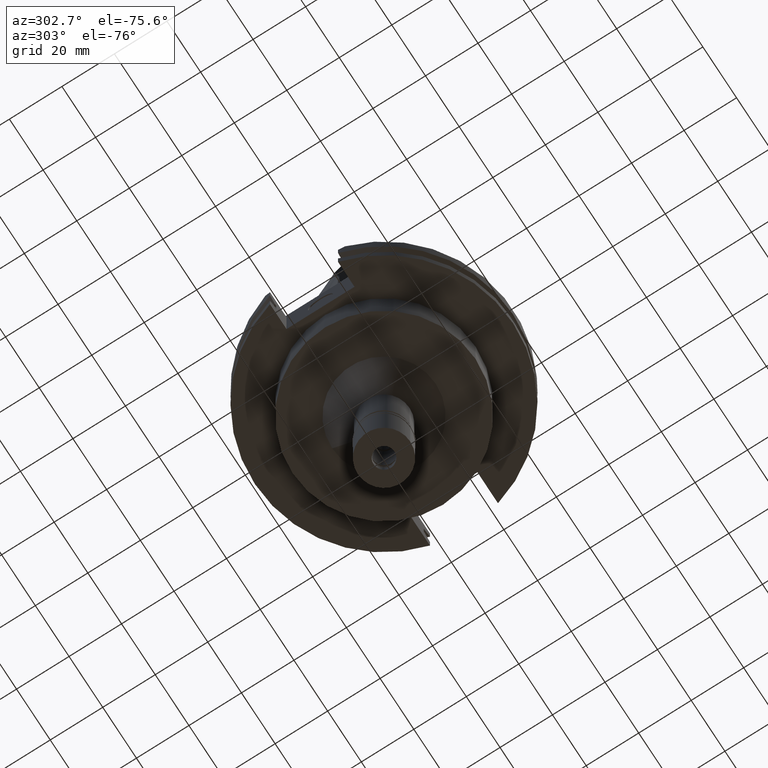
[diagram: clean part render]
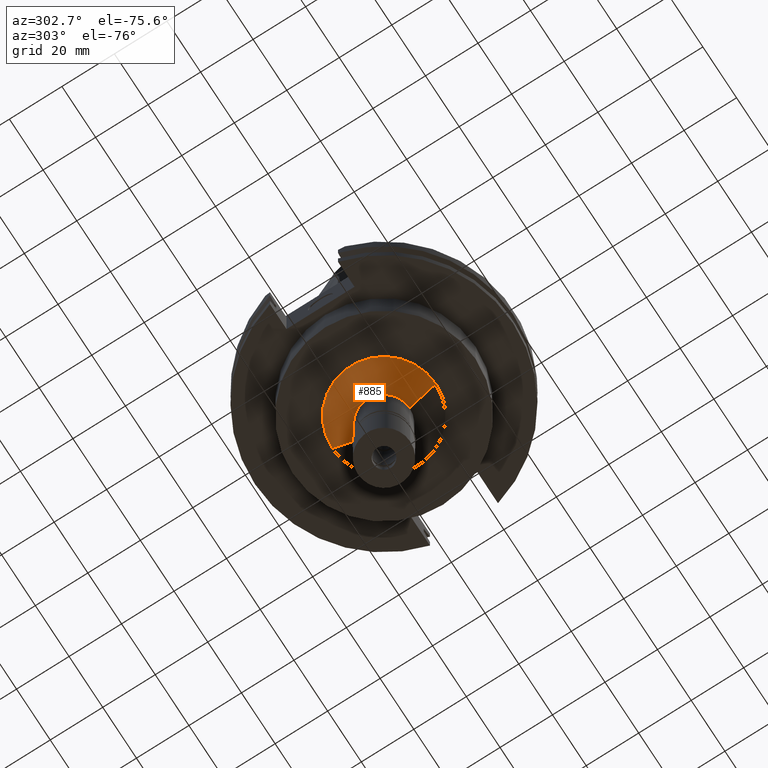
[diagram: same view with one face highlighted and labeled with its STEP entity id]
A machine part, auxiliary view. The second image highlights one B-rep face of the part: STEP entity #885.
In plain terms, the highlighted conical surface has half-angle 45 deg.
Its self-contained STEP definition (entity closure, byte-faithful):
#84 = LINE ( 'NONE', #2093, #3108 ) ;
#334 = FACE_OUTER_BOUND ( 'NONE', #1866, .T. ) ;
#359 = VERTEX_POINT ( 'NONE', #2424 ) ;
#457 = AXIS2_PLACEMENT_3D ( 'NONE', #3216, #2220, #960 ) ;
#466 = DIRECTION ( 'NONE',  ( 0.0000000000000000000, 0.7071067811865474617, -0.7071067811865474617 ) ) ;
#521 = AXIS2_PLACEMENT_3D ( 'NONE', #692, #3251, #956 ) ;
#692 = CARTESIAN_POINT ( 'NONE',  ( 0.0000000000000000000, 0.0000000000000000000, -40.00000000000000000 ) ) ;
#696 = DIRECTION ( 'NONE',  ( 0.0000000000000000000, 0.0000000000000000000, -1.000000000000000000 ) ) ;
#714 = LINE ( 'NONE', #1736, #813 ) ;
#796 = CARTESIAN_POINT ( 'NONE',  ( 0.0000000000000000000, 19.75000000000000000, -35.00000000000000000 ) ) ;
#813 = VECTOR ( 'NONE', #466, 1000.000000000000114 ) ;
#885 = ADVANCED_FACE ( 'NONE', ( #334 ), #1088, .T. ) ;
#956 = DIRECTION ( 'NONE',  ( 0.0000000000000000000, 1.000000000000000000, 0.0000000000000000000 ) ) ;
#960 = DIRECTION ( 'NONE',  ( 0.0000000000000000000, -1.000000000000000000, 0.0000000000000000000 ) ) ;
#1088 = CONICAL_SURFACE ( 'NONE', #521, 14.75000000000000000, 0.7853981633972997312 ) ;
#1097 = DIRECTION ( 'NONE',  ( 0.0000000000000000000, -0.7071067811865474617, -0.7071067811865474617 ) ) ;
#1313 = ORIENTED_EDGE ( 'NONE', *, *, #1799, .T. ) ;
#1486 = EDGE_CURVE ( 'NONE', #2607, #359, #1894, .T. ) ;
#1736 = CARTESIAN_POINT ( 'NONE',  ( 0.0000000000000000000, -19.75000000000000000, -35.00000000000000000 ) ) ;
#1799 = EDGE_CURVE ( 'NONE', #2176, #359, #84, .T. ) ;
#1807 = ORIENTED_EDGE ( 'NONE', *, *, #3017, .T. ) ;
#1866 = EDGE_LOOP ( 'NONE', ( #3093, #2904, #1807, #1313 ) ) ;
#1878 = VERTEX_POINT ( 'NONE', #2666 ) ;
#1894 = CIRCLE ( 'NONE', #457, 9.750000000000000000 ) ;
#2064 = EDGE_CURVE ( 'NONE', #1878, #2607, #714, .T. ) ;
#2093 = CARTESIAN_POINT ( 'NONE',  ( 0.0000000000000000000, 19.75000000000000000, -35.00000000000000000 ) ) ;
#2176 = VERTEX_POINT ( 'NONE', #796 ) ;
#2191 = CARTESIAN_POINT ( 'NONE',  ( 0.0000000000000000000, -9.750000000000000000, -45.00000000000000000 ) ) ;
#2197 = CIRCLE ( 'NONE', #2947, 19.75000000000000000 ) ;
#2220 = DIRECTION ( 'NONE',  ( 0.0000000000000000000, 0.0000000000000000000, -1.000000000000000000 ) ) ;
#2424 = CARTESIAN_POINT ( 'NONE',  ( 0.0000000000000000000, 9.750000000000000000, -45.00000000000000000 ) ) ;
#2454 = DIRECTION ( 'NONE',  ( 0.0000000000000000000, -1.000000000000000000, 0.0000000000000000000 ) ) ;
#2607 = VERTEX_POINT ( 'NONE', #2191 ) ;
#2666 = CARTESIAN_POINT ( 'NONE',  ( 0.0000000000000000000, -19.75000000000000000, -35.00000000000000000 ) ) ;
#2904 = ORIENTED_EDGE ( 'NONE', *, *, #2064, .F. ) ;
#2947 = AXIS2_PLACEMENT_3D ( 'NONE', #3200, #696, #2454 ) ;
#3017 = EDGE_CURVE ( 'NONE', #1878, #2176, #2197, .T. ) ;
#3093 = ORIENTED_EDGE ( 'NONE', *, *, #1486, .F. ) ;
#3108 = VECTOR ( 'NONE', #1097, 1000.000000000000114 ) ;
#3200 = CARTESIAN_POINT ( 'NONE',  ( 0.0000000000000000000, 0.0000000000000000000, -35.00000000000000000 ) ) ;
#3216 = CARTESIAN_POINT ( 'NONE',  ( 0.0000000000000000000, 0.0000000000000000000, -45.00000000000000000 ) ) ;
#3251 = DIRECTION ( 'NONE',  ( 0.0000000000000000000, 0.0000000000000000000, 1.000000000000000000 ) ) ;